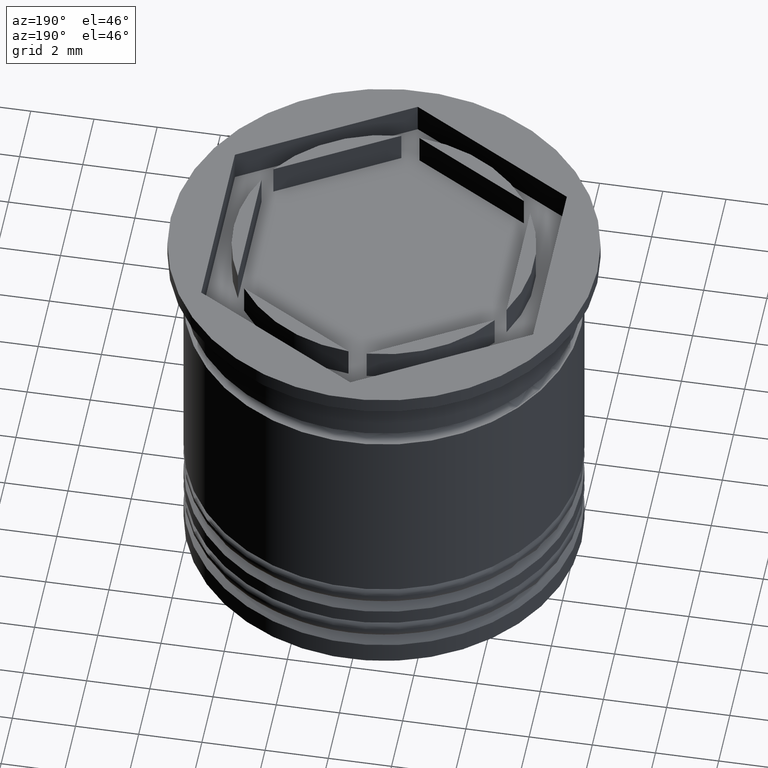
[diagram: clean part render]
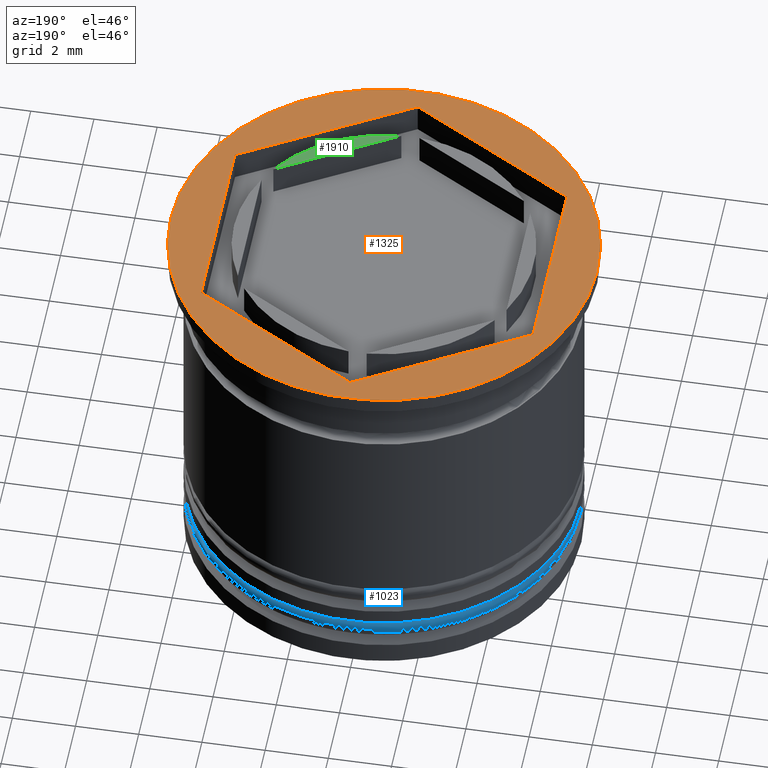
[diagram: same view with three faces highlighted in distinct colors, each labeled with its STEP entity id]
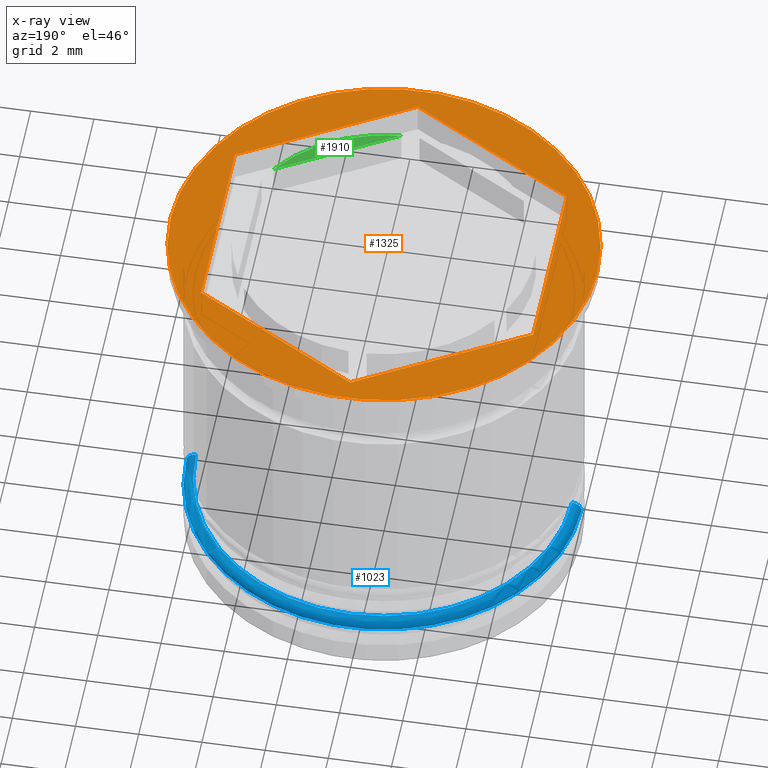
[diagram: x-ray of the same camera — body ghosted, the three highlighted faces saturated]
A machine part, auxiliary view with three faces highlighted in distinct colors.
The next image is the same camera in x-ray (body ghosted, the three faces saturated) — at least one of them is partly hidden behind the body in this view.
Their STEP definitions:

[orange] entity #1325 — the highlighted planar face has unit normal (0, -0, 1).
#2 = VERTEX_POINT ( 'NONE', #590 ) ;
#5 = CARTESIAN_POINT ( 'NONE',  ( -2.624999999999999556, -4.546633369868303021, 0.000000000000000000 ) ) ;
#23 = CARTESIAN_POINT ( 'NONE',  ( -2.624999999999999112, 4.546633369868302132, 0.000000000000000000 ) ) ;
#51 = LINE ( 'NONE', #1743, #1438 ) ;
#66 = EDGE_CURVE ( 'NONE', #577, #1376, #431, .T. ) ;
#72 = DIRECTION ( 'NONE',  ( 0.000000000000000000, 1.000000000000000000, -0.000000000000000000 ) ) ;
#86 = CARTESIAN_POINT ( 'NONE',  ( 0.000000000000000000, 0.000000000000000000, 0.000000000000000000 ) ) ;
#147 = CIRCLE ( 'NONE', #411, 6.750000000000000000 ) ;
#157 = DIRECTION ( 'NONE',  ( 0.8660254037844387076, -0.4999999999999999445, 0.000000000000000000 ) ) ;
#166 = LINE ( 'NONE', #5, #1635 ) ;
#169 = DIRECTION ( 'NONE',  ( -0.000000000000000000, -0.000000000000000000, 1.000000000000000000 ) ) ;
#188 = EDGE_CURVE ( 'NONE', #191, #1350, #1224, .T. ) ;
#191 = VERTEX_POINT ( 'NONE', #1531 ) ;
#193 = FACE_BOUND ( 'NONE', #1367, .T. ) ;
#201 = CARTESIAN_POINT ( 'NONE',  ( 5.249999999999997335, 3.031088913245537420, 0.000000000000000000 ) ) ;
#241 = CARTESIAN_POINT ( 'NONE',  ( 2.624999999999999112, 4.546633369868303021, 0.000000000000000000 ) ) ;
#242 = VECTOR ( 'NONE', #885, 1000.000000000000000 ) ;
#272 = CARTESIAN_POINT ( 'NONE',  ( -5.249999999999999112, 0.000000000000000000, 0.000000000000000000 ) ) ;
#385 = LINE ( 'NONE', #241, #605 ) ;
#407 = DIRECTION ( 'NONE',  ( -0.8660254037844387076, 0.4999999999999998890, 0.000000000000000000 ) ) ;
#411 = AXIS2_PLACEMENT_3D ( 'NONE', #1830, #169, #943 ) ;
#431 = LINE ( 'NONE', #272, #242 ) ;
#447 = AXIS2_PLACEMENT_3D ( 'NONE', #86, #1448, #1930 ) ;
#527 = DIRECTION ( 'NONE',  ( 1.000000000000000000, 0.000000000000000000, 0.000000000000000000 ) ) ;
#528 = CARTESIAN_POINT ( 'NONE',  ( -6.750000000000000000, 8.266365894244634333E-16, 0.000000000000000000 ) ) ;
#549 = ORIENTED_EDGE ( 'NONE', *, *, #996, .F. ) ;
#577 = VERTEX_POINT ( 'NONE', #1647 ) ;
#590 = CARTESIAN_POINT ( 'NONE',  ( 6.750000000000000000, 0.000000000000000000, 0.000000000000000000 ) ) ;
#602 = ORIENTED_EDGE ( 'NONE', *, *, #66, .F. ) ;
#605 = VECTOR ( 'NONE', #407, 1000.000000000000114 ) ;
#671 = EDGE_CURVE ( 'NONE', #2, #1335, #147, .T. ) ;
#828 = AXIS2_PLACEMENT_3D ( 'NONE', #1904, #983, #527 ) ;
#885 = DIRECTION ( 'NONE',  ( 0.000000000000000000, -1.000000000000000000, 0.000000000000000000 ) ) ;
#943 = DIRECTION ( 'NONE',  ( 1.000000000000000000, 0.000000000000000000, 0.000000000000000000 ) ) ;
#981 = EDGE_LOOP ( 'NONE', ( #1493, #1088 ) ) ;
#983 = DIRECTION ( 'NONE',  ( -0.000000000000000000, -0.000000000000000000, 1.000000000000000000 ) ) ;
#996 = EDGE_CURVE ( 'NONE', #1292, #1625, #385, .T. ) ;
#1073 = ORIENTED_EDGE ( 'NONE', *, *, #1525, .F. ) ;
#1088 = ORIENTED_EDGE ( 'NONE', *, *, #1779, .T. ) ;
#1102 = LINE ( 'NONE', #23, #1987 ) ;
#1224 = LINE ( 'NONE', #1838, #1878 ) ;
#1258 = DIRECTION ( 'NONE',  ( -0.8660254037844387076, -0.4999999999999999445, 0.000000000000000000 ) ) ;
#1286 = CARTESIAN_POINT ( 'NONE',  ( 5.249999999999997335, -3.031088913245533423, 0.000000000000000000 ) ) ;
#1292 = VERTEX_POINT ( 'NONE', #201 ) ;
#1306 = FACE_OUTER_BOUND ( 'NONE', #981, .T. ) ;
#1325 = ADVANCED_FACE ( 'NONE', ( #193, #1306 ), #1469, .T. ) ;
#1335 = VERTEX_POINT ( 'NONE', #528 ) ;
#1350 = VERTEX_POINT ( 'NONE', #1286 ) ;
#1367 = EDGE_LOOP ( 'NONE', ( #1650, #1441, #1840, #602, #1073, #549 ) ) ;
#1376 = VERTEX_POINT ( 'NONE', #1793 ) ;
#1438 = VECTOR ( 'NONE', #72, 1000.000000000000000 ) ;
#1441 = ORIENTED_EDGE ( 'NONE', *, *, #188, .F. ) ;
#1448 = DIRECTION ( 'NONE',  ( 0.000000000000000000, -0.000000000000000000, 1.000000000000000000 ) ) ;
#1469 = PLANE ( 'NONE',  #447 ) ;
#1493 = ORIENTED_EDGE ( 'NONE', *, *, #671, .T. ) ;
#1525 = EDGE_CURVE ( 'NONE', #1625, #577, #1102, .T. ) ;
#1531 = CARTESIAN_POINT ( 'NONE',  ( -4.336808689942017736E-16, -6.062177826491070398, 0.000000000000000000 ) ) ;
#1570 = EDGE_CURVE ( 'NONE', #1376, #191, #166, .T. ) ;
#1625 = VERTEX_POINT ( 'NONE', #1991 ) ;
#1635 = VECTOR ( 'NONE', #157, 999.9999999999998863 ) ;
#1647 = CARTESIAN_POINT ( 'NONE',  ( -5.249999999999999112, 3.031088913245535199, 0.000000000000000000 ) ) ;
#1650 = ORIENTED_EDGE ( 'NONE', *, *, #1769, .F. ) ;
#1681 = DIRECTION ( 'NONE',  ( 0.8660254037844385966, 0.5000000000000001110, 0.000000000000000000 ) ) ;
#1697 = CIRCLE ( 'NONE', #828, 6.750000000000000000 ) ;
#1743 = CARTESIAN_POINT ( 'NONE',  ( 5.249999999999997335, 0.000000000000000000, 0.000000000000000000 ) ) ;
#1769 = EDGE_CURVE ( 'NONE', #1350, #1292, #51, .T. ) ;
#1779 = EDGE_CURVE ( 'NONE', #1335, #2, #1697, .T. ) ;
#1793 = CARTESIAN_POINT ( 'NONE',  ( -5.249999999999999112, -3.031088913245535199, 0.000000000000000000 ) ) ;
#1830 = CARTESIAN_POINT ( 'NONE',  ( 0.000000000000000000, 0.000000000000000000, 0.000000000000000000 ) ) ;
#1838 = CARTESIAN_POINT ( 'NONE',  ( 2.624999999999999112, -4.546633369868300356, 0.000000000000000000 ) ) ;
#1840 = ORIENTED_EDGE ( 'NONE', *, *, #1570, .F. ) ;
#1878 = VECTOR ( 'NONE', #1681, 1000.000000000000000 ) ;
#1904 = CARTESIAN_POINT ( 'NONE',  ( 0.000000000000000000, 0.000000000000000000, 0.000000000000000000 ) ) ;
#1930 = DIRECTION ( 'NONE',  ( 1.000000000000000000, 0.000000000000000000, 0.000000000000000000 ) ) ;
#1987 = VECTOR ( 'NONE', #1258, 999.9999999999998863 ) ;
#1991 = CARTESIAN_POINT ( 'NONE',  ( 0.000000000000000000, 6.062177826491069510, 0.000000000000000000 ) ) ;

[blue] entity #1023 — the highlighted toroidal blend (fillet) surface has major radius 5.95 mm and minor (blend) radius 0.3 mm.
#50 = EDGE_CURVE ( 'NONE', #536, #648, #1504, .T. ) ;
#102 = CARTESIAN_POINT ( 'NONE',  ( 5.950000000000000178, 7.286648454926751965E-16, -10.80000000000000071 ) ) ;
#123 = CARTESIAN_POINT ( 'NONE',  ( 0.000000000000000000, 0.000000000000000000, -10.80000000000000071 ) ) ;
#127 = EDGE_LOOP ( 'NONE', ( #654, #552, #1360, #1911 ) ) ;
#177 = CIRCLE ( 'NONE', #1827, 0.2999999999999999334 ) ;
#216 = CARTESIAN_POINT ( 'NONE',  ( -5.950000000000000178, 0.000000000000000000, -10.50000000000000000 ) ) ;
#238 = EDGE_CURVE ( 'NONE', #1968, #536, #1024, .T. ) ;
#349 = DIRECTION ( 'NONE',  ( 0.000000000000000000, 0.000000000000000000, -1.000000000000000000 ) ) ;
#419 = DIRECTION ( 'NONE',  ( -0.000000000000000000, -0.000000000000000000, 1.000000000000000000 ) ) ;
#421 = CARTESIAN_POINT ( 'NONE',  ( 0.000000000000000000, 0.000000000000000000, -10.80000000000000071 ) ) ;
#432 = EDGE_CURVE ( 'NONE', #841, #648, #177, .T. ) ;
#449 = DIRECTION ( 'NONE',  ( -1.000000000000000000, 0.000000000000000000, 0.000000000000000000 ) ) ;
#466 = EDGE_CURVE ( 'NONE', #841, #1968, #603, .T. ) ;
#497 = AXIS2_PLACEMENT_3D ( 'NONE', #421, #1644, #449 ) ;
#501 = AXIS2_PLACEMENT_3D ( 'NONE', #123, #589, #1799 ) ;
#536 = VERTEX_POINT ( 'NONE', #551 ) ;
#551 = CARTESIAN_POINT ( 'NONE',  ( -6.250000000000000000, 7.654042494670957606E-16, -10.80000000000000071 ) ) ;
#552 = ORIENTED_EDGE ( 'NONE', *, *, #432, .T. ) ;
#557 = DIRECTION ( 'NONE',  ( -1.000000000000000000, -1.224646799147353207E-16, 0.000000000000000000 ) ) ;
#578 = TOROIDAL_SURFACE ( 'NONE', #501, 5.950000000000000178, 0.2999999999999999889 ) ;
#589 = DIRECTION ( 'NONE',  ( 0.000000000000000000, 0.000000000000000000, -1.000000000000000000 ) ) ;
#603 = CIRCLE ( 'NONE', #1663, 5.950000000000000178 ) ;
#648 = VERTEX_POINT ( 'NONE', #1373 ) ;
#654 = ORIENTED_EDGE ( 'NONE', *, *, #466, .F. ) ;
#841 = VERTEX_POINT ( 'NONE', #1269 ) ;
#954 = AXIS2_PLACEMENT_3D ( 'NONE', #1850, #1877, #349 ) ;
#1023 = ADVANCED_FACE ( 'NONE', ( #1530 ), #578, .T. ) ;
#1024 = CIRCLE ( 'NONE', #954, 0.2999999999999999334 ) ;
#1269 = CARTESIAN_POINT ( 'NONE',  ( 5.950000000000000178, 7.470345474798855279E-16, -10.50000000000000000 ) ) ;
#1332 = CARTESIAN_POINT ( 'NONE',  ( 0.000000000000000000, 0.000000000000000000, -10.50000000000000000 ) ) ;
#1360 = ORIENTED_EDGE ( 'NONE', *, *, #50, .F. ) ;
#1373 = CARTESIAN_POINT ( 'NONE',  ( 6.250000000000000000, 0.000000000000000000, -10.80000000000000071 ) ) ;
#1504 = CIRCLE ( 'NONE', #497, 6.250000000000000000 ) ;
#1530 = FACE_OUTER_BOUND ( 'NONE', #127, .T. ) ;
#1644 = DIRECTION ( 'NONE',  ( 0.000000000000000000, 0.000000000000000000, -1.000000000000000000 ) ) ;
#1663 = AXIS2_PLACEMENT_3D ( 'NONE', #1332, #419, #1772 ) ;
#1772 = DIRECTION ( 'NONE',  ( -1.000000000000000000, 0.000000000000000000, 0.000000000000000000 ) ) ;
#1799 = DIRECTION ( 'NONE',  ( -1.000000000000000000, 0.000000000000000000, 0.000000000000000000 ) ) ;
#1827 = AXIS2_PLACEMENT_3D ( 'NONE', #102, #1931, #557 ) ;
#1850 = CARTESIAN_POINT ( 'NONE',  ( -5.950000000000000178, 0.000000000000000000, -10.80000000000000071 ) ) ;
#1877 = DIRECTION ( 'NONE',  ( -0.000000000000000000, -1.000000000000000000, -0.000000000000000000 ) ) ;
#1911 = ORIENTED_EDGE ( 'NONE', *, *, #238, .F. ) ;
#1931 = DIRECTION ( 'NONE',  ( -1.224646799147353207E-16, 1.000000000000000000, 0.000000000000000000 ) ) ;
#1968 = VERTEX_POINT ( 'NONE', #216 ) ;

[green] entity #1910 — the highlighted planar face has unit normal (0, -0, 1).
#121 = LINE ( 'NONE', #138, #737 ) ;
#138 = CARTESIAN_POINT ( 'NONE',  ( 2.124999999999998668, -3.680607966083862426, 0.000000000000000000 ) ) ;
#372 = AXIS2_PLACEMENT_3D ( 'NONE', #720, #1637, #1947 ) ;
#482 = AXIS2_PLACEMENT_3D ( 'NONE', #685, #521, #1747 ) ;
#521 = DIRECTION ( 'NONE',  ( 0.000000000000000000, -0.000000000000000000, 1.000000000000000000 ) ) ;
#591 = EDGE_CURVE ( 'NONE', #601, #1765, #788, .T. ) ;
#601 = VERTEX_POINT ( 'NONE', #1210 ) ;
#649 = ORIENTED_EDGE ( 'NONE', *, *, #1476, .F. ) ;
#685 = CARTESIAN_POINT ( 'NONE',  ( 0.000000000000000000, 0.000000000000000000, 0.000000000000000000 ) ) ;
#720 = CARTESIAN_POINT ( 'NONE',  ( 0.000000000000000000, 0.000000000000000000, 0.000000000000000000 ) ) ;
#737 = VECTOR ( 'NONE', #1494, 999.9999999999998863 ) ;
#788 = CIRCLE ( 'NONE', #372, 4.749999999999999112 ) ;
#815 = CARTESIAN_POINT ( 'NONE',  ( 3.962117307087382745, -2.619947794304041011, 0.000000000000000000 ) ) ;
#964 = ORIENTED_EDGE ( 'NONE', *, *, #591, .T. ) ;
#1210 = CARTESIAN_POINT ( 'NONE',  ( 0.2878826929126147016, -4.741268137863684728, 0.000000000000000000 ) ) ;
#1476 = EDGE_CURVE ( 'NONE', #601, #1765, #121, .T. ) ;
#1486 = FACE_OUTER_BOUND ( 'NONE', #1719, .T. ) ;
#1494 = DIRECTION ( 'NONE',  ( 0.8660254037844387076, 0.5000000000000001110, 0.000000000000000000 ) ) ;
#1637 = DIRECTION ( 'NONE',  ( -0.000000000000000000, 0.000000000000000000, 1.000000000000000000 ) ) ;
#1719 = EDGE_LOOP ( 'NONE', ( #649, #964 ) ) ;
#1747 = DIRECTION ( 'NONE',  ( 1.000000000000000000, 0.000000000000000000, 0.000000000000000000 ) ) ;
#1765 = VERTEX_POINT ( 'NONE', #815 ) ;
#1891 = PLANE ( 'NONE',  #482 ) ;
#1910 = ADVANCED_FACE ( 'NONE', ( #1486 ), #1891, .T. ) ;
#1947 = DIRECTION ( 'NONE',  ( 1.000000000000000000, 0.000000000000000000, 0.000000000000000000 ) ) ;